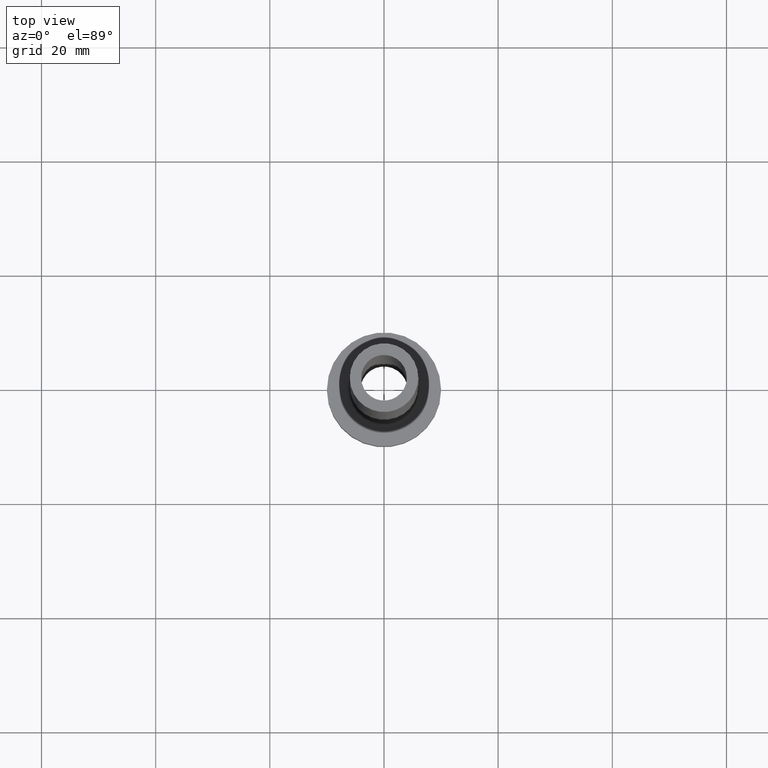
[diagram: clean part render]
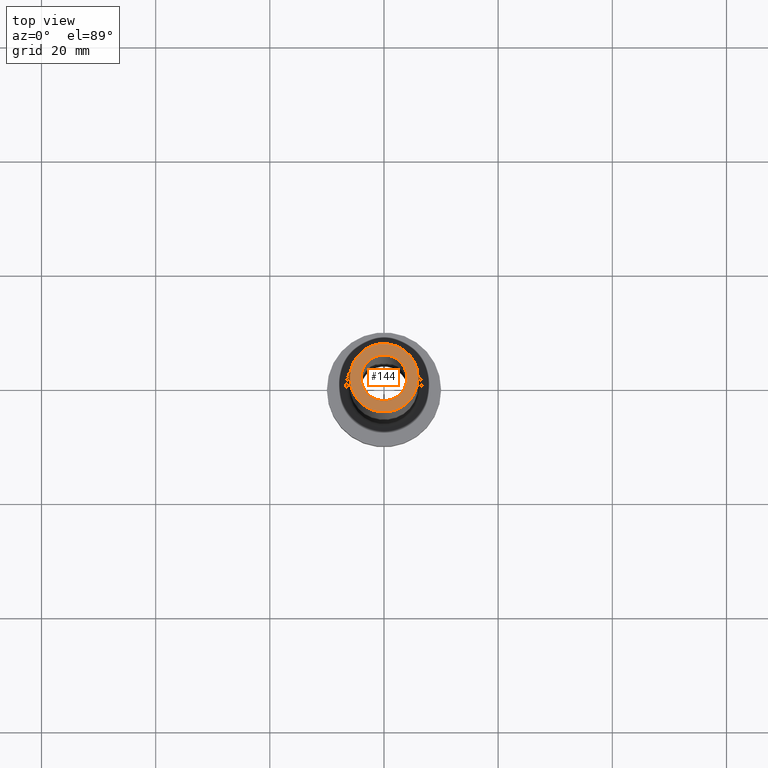
[diagram: same view with one face highlighted and labeled with its STEP entity id]
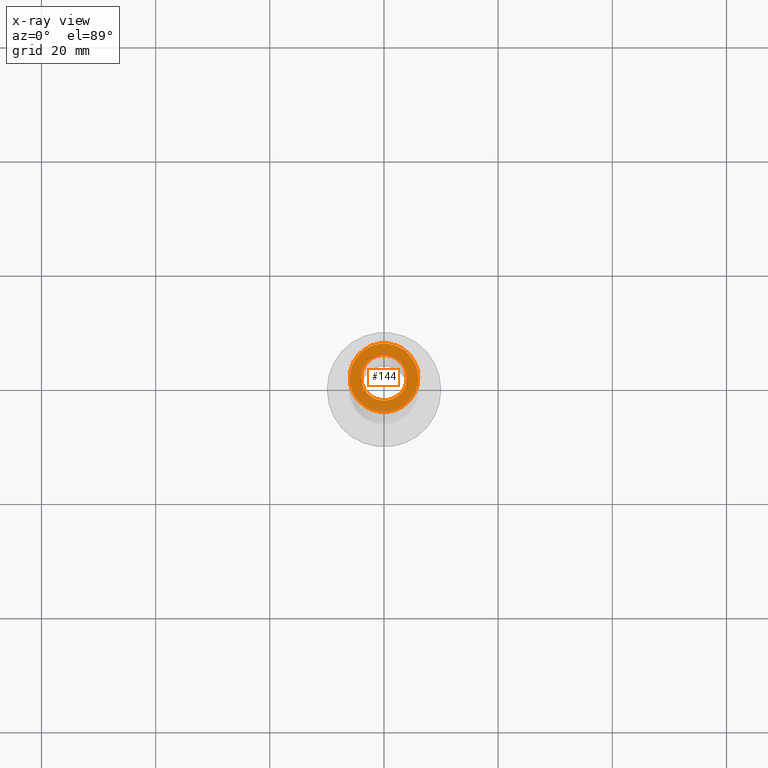
[diagram: x-ray of the same camera — body ghosted, the highlighted face saturated]
A machine part, top view. The second image highlights one B-rep face of the part: STEP entity #144.
The next image is the same camera in x-ray: the body ghosted, the highlighted face saturated — about 0% of this face is hidden behind the body in this view.
In plain terms, the highlighted planar face has unit normal (0, 0, 1).
Its self-contained STEP definition (entity closure, byte-faithful):
#2 = EDGE_CURVE ( 'NONE', #231, #159, #436, .T. ) ;
#8 = CIRCLE ( 'NONE', #262, 4.000000000000000000 ) ;
#18 = AXIS2_PLACEMENT_3D ( 'NONE', #392, #40, #363 ) ;
#40 = DIRECTION ( 'NONE',  ( 0.000000000000000000, 0.000000000000000000, 1.000000000000000000 ) ) ;
#56 = DIRECTION ( 'NONE',  ( 1.000000000000000000, 0.000000000000000000, 0.000000000000000000 ) ) ;
#72 = AXIS2_PLACEMENT_3D ( 'NONE', #139, #95, #133 ) ;
#90 = DIRECTION ( 'NONE',  ( 0.000000000000000000, 0.000000000000000000, 1.000000000000000000 ) ) ;
#93 = EDGE_CURVE ( 'NONE', #276, #226, #405, .T. ) ;
#95 = DIRECTION ( 'NONE',  ( 0.000000000000000000, 0.000000000000000000, 1.000000000000000000 ) ) ;
#100 = ORIENTED_EDGE ( 'NONE', *, *, #93, .T. ) ;
#120 = CARTESIAN_POINT ( 'NONE',  ( 0.000000000000000000, 0.000000000000000000, 125.0000000000000000 ) ) ;
#133 = DIRECTION ( 'NONE',  ( 1.000000000000000000, 0.000000000000000000, -0.000000000000000000 ) ) ;
#134 = ORIENTED_EDGE ( 'NONE', *, *, #2, .F. ) ;
#139 = CARTESIAN_POINT ( 'NONE',  ( 0.000000000000000000, 0.000000000000000000, 125.0000000000000000 ) ) ;
#144 = ADVANCED_FACE ( 'NONE', ( #243, #397 ), #298, .T. ) ;
#159 = VERTEX_POINT ( 'NONE', #458 ) ;
#172 = CARTESIAN_POINT ( 'NONE',  ( -4.000000000000000000, 0.000000000000000000, 125.0000000000000000 ) ) ;
#185 = CIRCLE ( 'NONE', #413, 6.000000000000000888 ) ;
#208 = CARTESIAN_POINT ( 'NONE',  ( -6.000000000000000888, 0.000000000000000000, 125.0000000000000000 ) ) ;
#226 = VERTEX_POINT ( 'NONE', #356 ) ;
#231 = VERTEX_POINT ( 'NONE', #172 ) ;
#241 = DIRECTION ( 'NONE',  ( 1.000000000000000000, 0.000000000000000000, 0.000000000000000000 ) ) ;
#243 = FACE_BOUND ( 'NONE', #354, .T. ) ;
#262 = AXIS2_PLACEMENT_3D ( 'NONE', #292, #406, #376 ) ;
#268 = ORIENTED_EDGE ( 'NONE', *, *, #312, .F. ) ;
#276 = VERTEX_POINT ( 'NONE', #208 ) ;
#292 = CARTESIAN_POINT ( 'NONE',  ( 0.000000000000000000, 0.000000000000000000, 125.0000000000000000 ) ) ;
#294 = EDGE_CURVE ( 'NONE', #226, #276, #185, .T. ) ;
#298 = PLANE ( 'NONE',  #72 ) ;
#312 = EDGE_CURVE ( 'NONE', #159, #231, #8, .T. ) ;
#325 = EDGE_LOOP ( 'NONE', ( #100, #447 ) ) ;
#354 = EDGE_LOOP ( 'NONE', ( #134, #268 ) ) ;
#356 = CARTESIAN_POINT ( 'NONE',  ( 6.000000000000000888, 7.347880794884120722E-16, 125.0000000000000000 ) ) ;
#363 = DIRECTION ( 'NONE',  ( 1.000000000000000000, 0.000000000000000000, 0.000000000000000000 ) ) ;
#376 = DIRECTION ( 'NONE',  ( 1.000000000000000000, 0.000000000000000000, 0.000000000000000000 ) ) ;
#388 = CARTESIAN_POINT ( 'NONE',  ( 0.000000000000000000, 0.000000000000000000, 125.0000000000000000 ) ) ;
#392 = CARTESIAN_POINT ( 'NONE',  ( 0.000000000000000000, 0.000000000000000000, 125.0000000000000000 ) ) ;
#397 = FACE_OUTER_BOUND ( 'NONE', #325, .T. ) ;
#405 = CIRCLE ( 'NONE', #18, 6.000000000000000888 ) ;
#406 = DIRECTION ( 'NONE',  ( 0.000000000000000000, 0.000000000000000000, 1.000000000000000000 ) ) ;
#413 = AXIS2_PLACEMENT_3D ( 'NONE', #388, #432, #241 ) ;
#420 = AXIS2_PLACEMENT_3D ( 'NONE', #120, #90, #56 ) ;
#432 = DIRECTION ( 'NONE',  ( 0.000000000000000000, 0.000000000000000000, 1.000000000000000000 ) ) ;
#436 = CIRCLE ( 'NONE', #420, 4.000000000000000000 ) ;
#447 = ORIENTED_EDGE ( 'NONE', *, *, #294, .T. ) ;
#458 = CARTESIAN_POINT ( 'NONE',  ( 4.000000000000000000, 4.898587196589411843E-16, 125.0000000000000000 ) ) ;